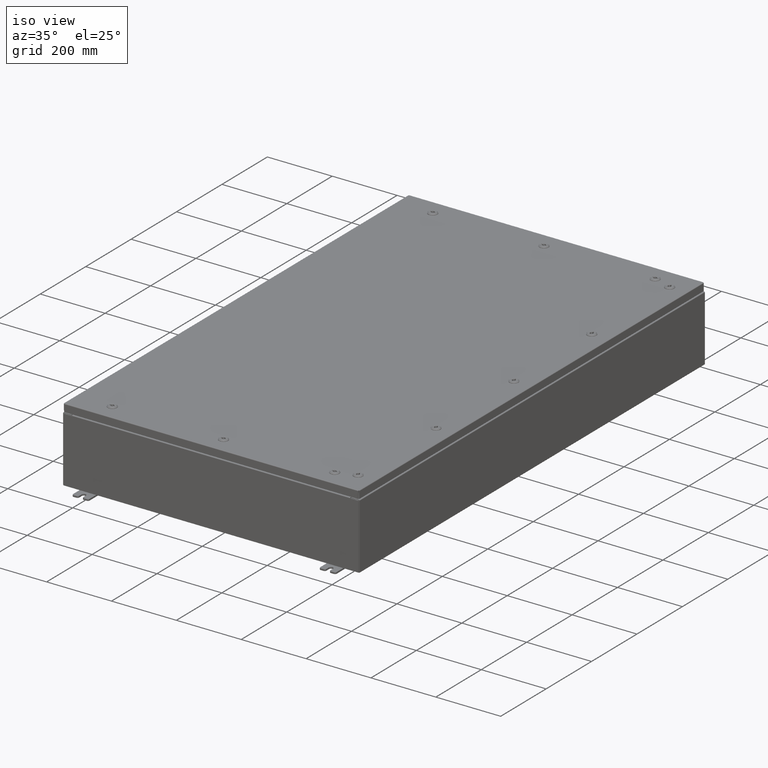
[diagram: clean part render]
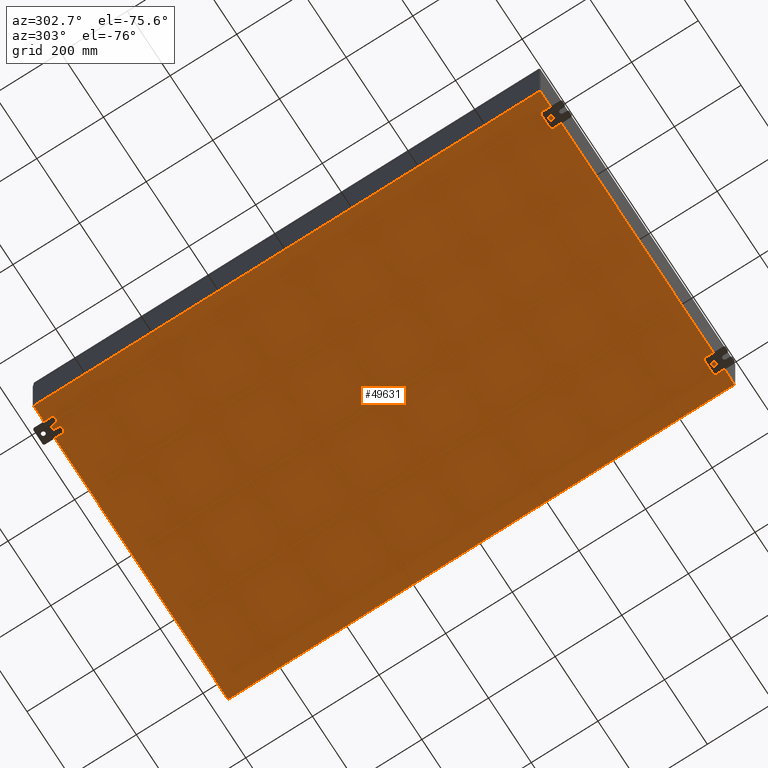
[diagram: tour spotlight — one face highlighted and labeled with its STEP entity id]
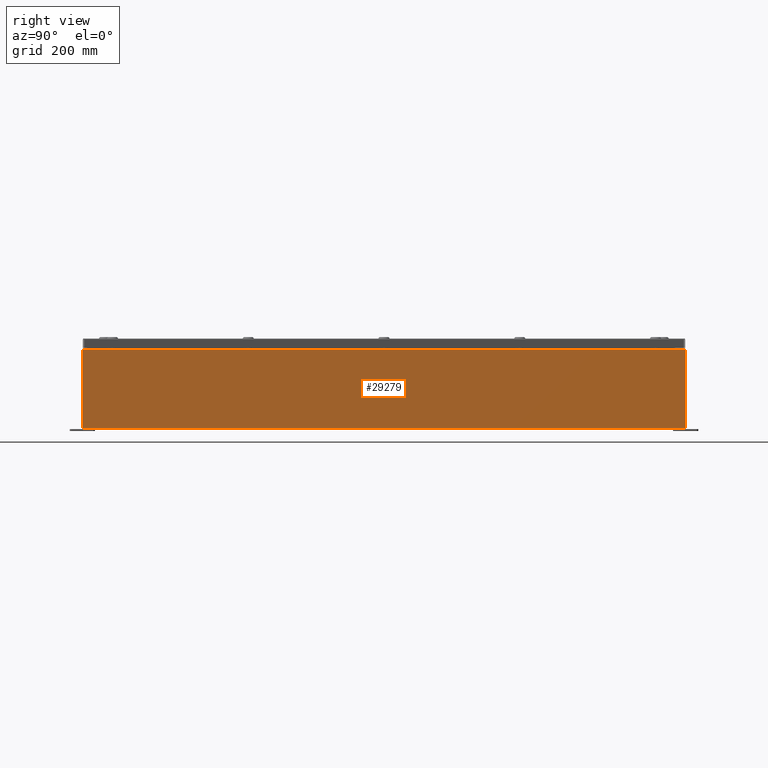
[diagram: tour spotlight — one face highlighted and labeled with its STEP entity id]
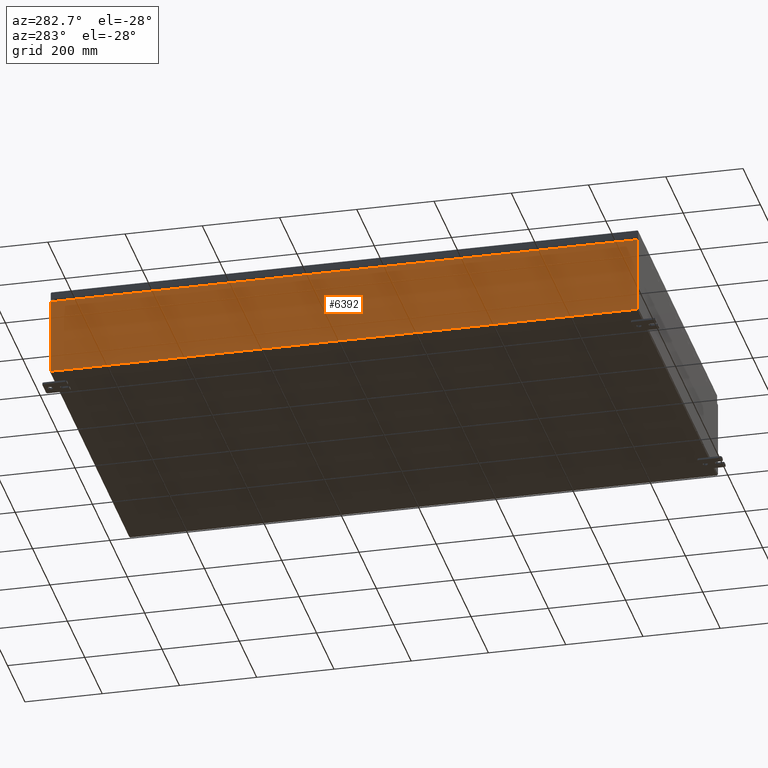
[diagram: tour spotlight — one face highlighted and labeled with its STEP entity id]
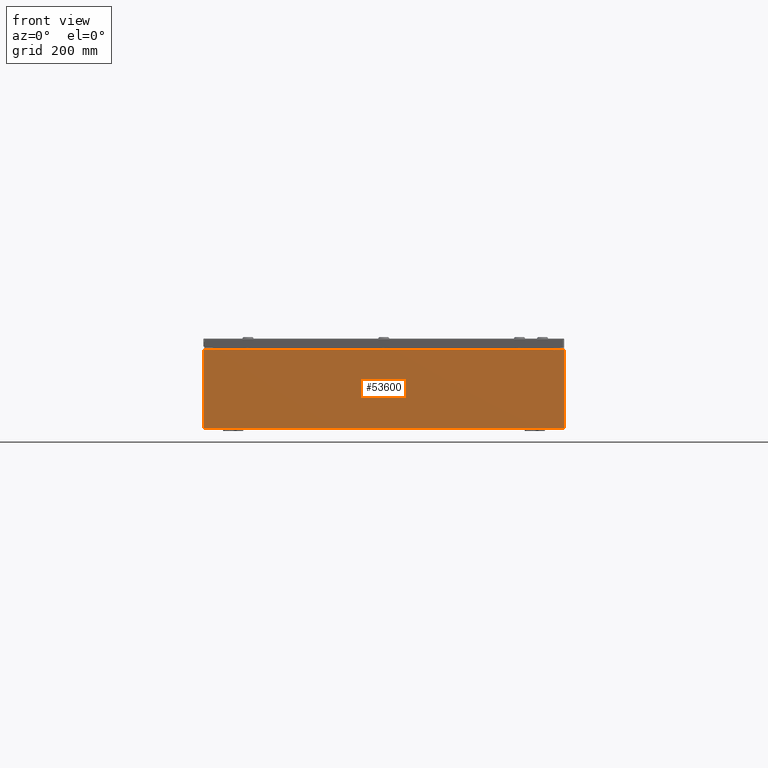
[diagram: tour spotlight — one face highlighted and labeled with its STEP entity id]
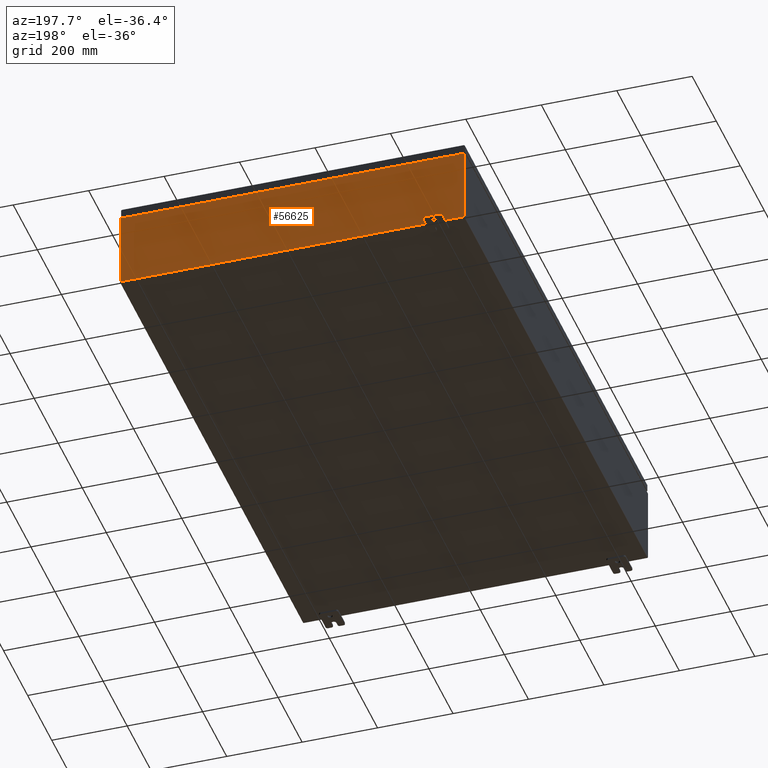
[diagram: tour spotlight — one face highlighted and labeled with its STEP entity id]
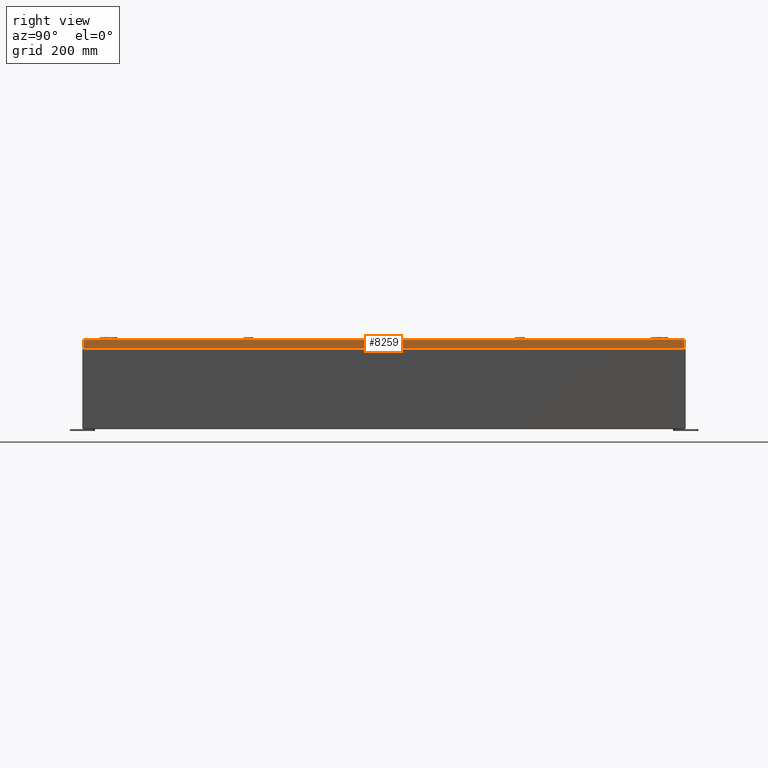
[diagram: tour spotlight — one face highlighted and labeled with its STEP entity id]
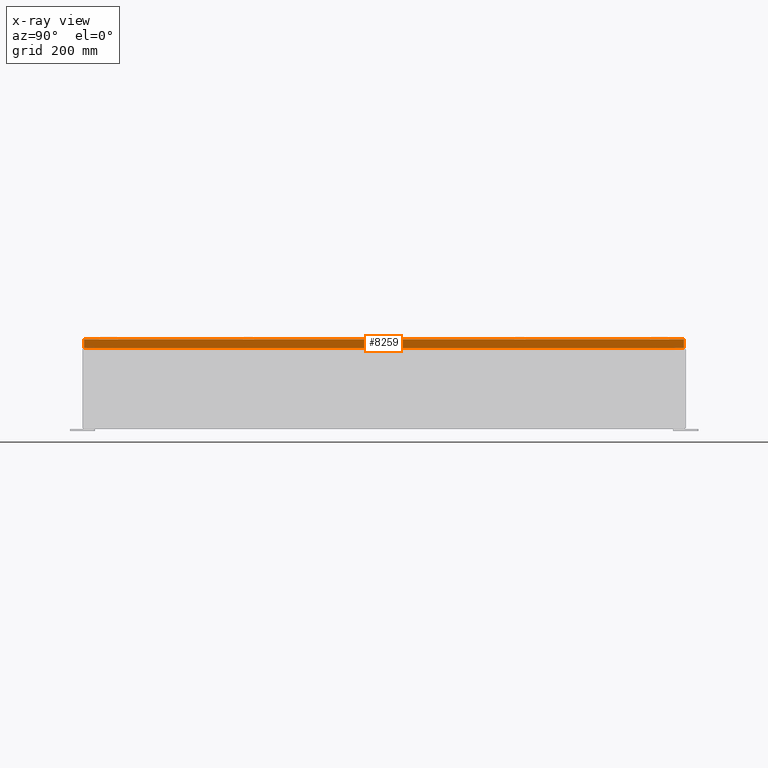
[diagram: x-ray of the same camera — body ghosted, this tour face saturated]
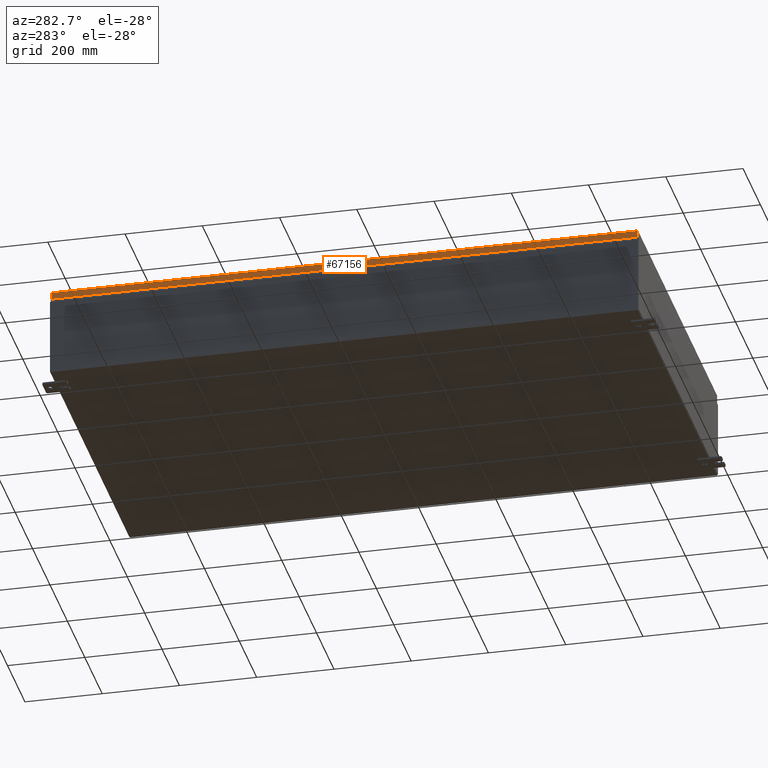
[diagram: tour spotlight — one face highlighted and labeled with its STEP entity id]
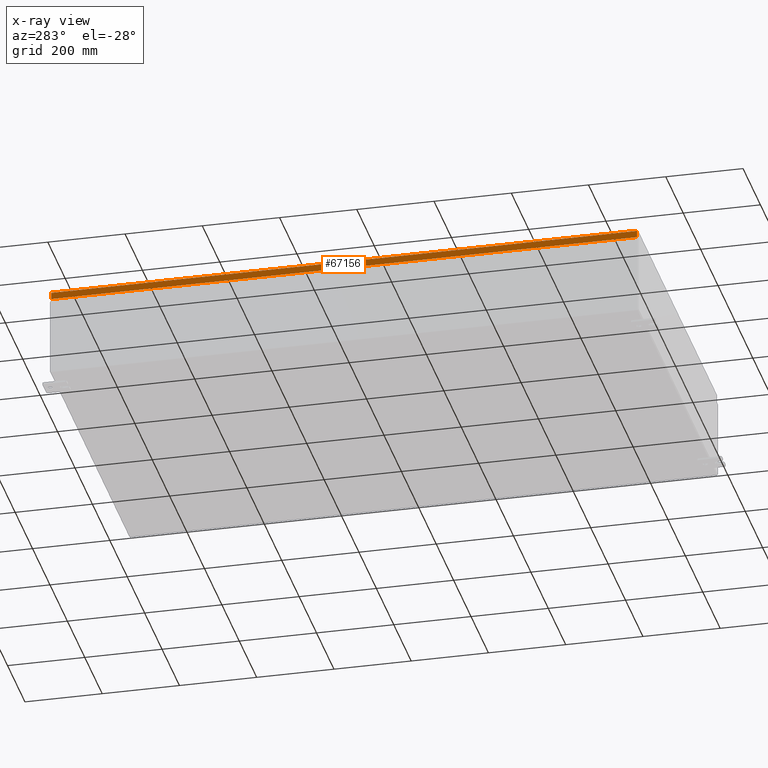
[diagram: x-ray of the same camera — body ghosted, this tour face saturated]
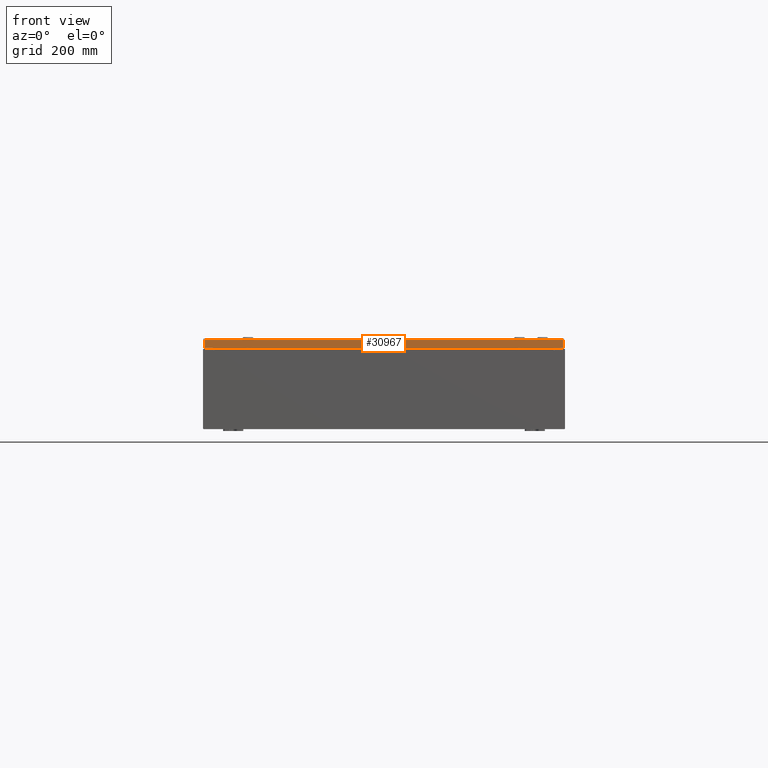
[diagram: tour spotlight — one face highlighted and labeled with its STEP entity id]
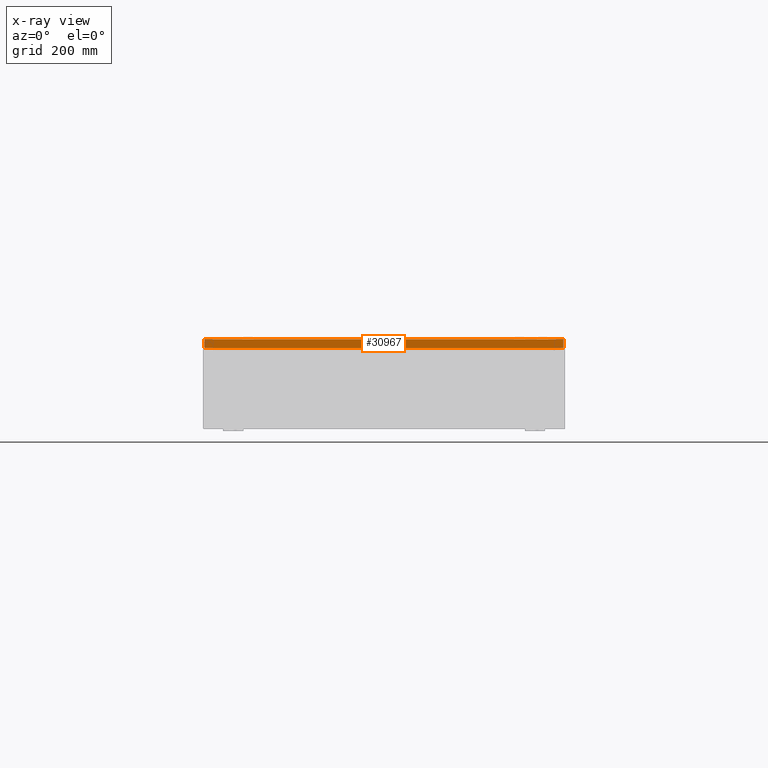
[diagram: x-ray of the same camera — body ghosted, this tour face saturated]
A machine part: a face-by-face anatomy tour. The part has 9942 B-rep faces; the first image is the clean iso view, then the 8 largest visible faces are spotlighted one at a time (largest first), each with its STEP entity span.

Face 1 — auxiliary view, entity #49631. In plain terms, the highlighted planar face has unit normal (0, 0, -1).
Definition (entity closure, byte-faithful):
#751 = ORIENTED_EDGE ( 'NONE', *, *, #67697, .T. ) ;
#3636 = ORIENTED_EDGE ( 'NONE', *, *, #32976, .T. ) ;
#6249 = EDGE_LOOP ( 'NONE', ( #13734, #751, #45249, #3636 ) ) ;
#6279 = DIRECTION ( 'NONE',  ( 0.0000000000000000000, 0.0000000000000000000, -1.000000000000000000 ) ) ;
#7538 = VECTOR ( 'NONE', #19351, 39.37007874015748100 ) ;
#10558 = FACE_OUTER_BOUND ( 'NONE', #6249, .T. ) ;
#11871 = DIRECTION ( 'NONE',  ( 1.000000000000000000, 0.0000000000000000000, 0.0000000000000000000 ) ) ;
#13734 = ORIENTED_EDGE ( 'NONE', *, *, #68928, .F. ) ;
#19351 = DIRECTION ( 'NONE',  ( -1.000000000000000000, -0.0000000000000000000, -0.0000000000000000000 ) ) ;
#20974 = CARTESIAN_POINT ( 'NONE',  ( -17.91230000000000200, -29.92530000000001100, -0.07469999999999994700 ) ) ;
#21862 = AXIS2_PLACEMENT_3D ( 'NONE', #64716, #6279, #43666 ) ;
#23699 = VECTOR ( 'NONE', #63141, 39.37007874015748100 ) ;
#24604 = CARTESIAN_POINT ( 'NONE',  ( -17.91230000000000200, -29.92530000000002100, -0.07469999999999994700 ) ) ;
#26158 = VERTEX_POINT ( 'NONE', #20974 ) ;
#30005 = VERTEX_POINT ( 'NONE', #68145 ) ;
#30721 = VECTOR ( 'NONE', #11871, 39.37007874015748100 ) ;
#31652 = LINE ( 'NONE', #24604, #44257 ) ;
#32976 = EDGE_CURVE ( 'NONE', #52696, #48132, #36232, .T. ) ;
#35269 = CARTESIAN_POINT ( 'NONE',  ( -18.00000000000000400, 29.92529999999998900, -0.07470000000000000300 ) ) ;
#35932 = LINE ( 'NONE', #35269, #7538 ) ;
#36232 = LINE ( 'NONE', #52364, #23699 ) ;
#37453 = CARTESIAN_POINT ( 'NONE',  ( 17.91229999999999800, -29.92530000000001100, -0.07470000000000000300 ) ) ;
#40753 = DIRECTION ( 'NONE',  ( -0.0000000000000000000, 1.000000000000000000, -0.0000000000000000000 ) ) ;
#43207 = CARTESIAN_POINT ( 'NONE',  ( -18.00000000000000400, -29.92530000000001100, -0.07470000000000000300 ) ) ;
#43666 = DIRECTION ( 'NONE',  ( -1.000000000000000000, 0.0000000000000000000, -0.0000000000000000000 ) ) ;
#44257 = VECTOR ( 'NONE', #40753, 39.37007874015748100 ) ;
#44994 = LINE ( 'NONE', #43207, #30721 ) ;
#45249 = ORIENTED_EDGE ( 'NONE', *, *, #59306, .F. ) ;
#48132 = VERTEX_POINT ( 'NONE', #37453 ) ;
#49631 = ADVANCED_FACE ( 'NONE', ( #10558 ), #59571, .T. ) ;
#52364 = CARTESIAN_POINT ( 'NONE',  ( 17.91229999999999800, 29.92529999999999300, -0.07469999999999994700 ) ) ;
#52696 = VERTEX_POINT ( 'NONE', #68391 ) ;
#59306 = EDGE_CURVE ( 'NONE', #52696, #30005, #35932, .T. ) ;
#59571 = PLANE ( 'NONE',  #21862 ) ;
#63141 = DIRECTION ( 'NONE',  ( -0.0000000000000000000, -1.000000000000000000, -0.0000000000000000000 ) ) ;
#64716 = CARTESIAN_POINT ( 'NONE',  ( 0.0000000000000000000, 0.0000000000000000000, -0.07470000000000000300 ) ) ;
#67697 = EDGE_CURVE ( 'NONE', #26158, #30005, #31652, .T. ) ;
#68145 = CARTESIAN_POINT ( 'NONE',  ( -17.91230000000000200, 29.92529999999998600, -0.07470000000000000300 ) ) ;
#68391 = CARTESIAN_POINT ( 'NONE',  ( 17.91229999999999800, 29.92529999999999300, -0.07469999999999994700 ) ) ;
#68928 = EDGE_CURVE ( 'NONE', #26158, #48132, #44994, .T. ) ;

Face 2 — right view, entity #29279. In plain terms, the highlighted planar face has unit normal (-1, 0, 0).
Definition (entity closure, byte-faithful):
#322 = CARTESIAN_POINT ( 'NONE',  ( 17.99999999999999600, -29.92530000000001100, 0.01299999999999984700 ) ) ;
#3221 = EDGE_CURVE ( 'NONE', #27669, #62026, #36061, .T. ) ;
#3293 = CARTESIAN_POINT ( 'NONE',  ( 17.99999999999999600, 29.92529999999998900, -6.478858477053722900E-014 ) ) ;
#7445 = ORIENTED_EDGE ( 'NONE', *, *, #64838, .F. ) ;
#8714 = PLANE ( 'NONE',  #36461 ) ;
#9924 = DIRECTION ( 'NONE',  ( -3.584876173029202900E-015, 0.0000000000000000000, -1.000000000000000000 ) ) ;
#10937 = EDGE_CURVE ( 'NONE', #35582, #19134, #53180, .T. ) ;
#13394 = VECTOR ( 'NONE', #38820, 39.37007874015748100 ) ;
#19134 = VERTEX_POINT ( 'NONE', #30064 ) ;
#19715 = EDGE_LOOP ( 'NONE', ( #68659, #24598, #7445, #55058 ) ) ;
#20137 = VECTOR ( 'NONE', #67338, 39.37007874015748100 ) ;
#24598 = ORIENTED_EDGE ( 'NONE', *, *, #10937, .T. ) ;
#25031 = DIRECTION ( 'NONE',  ( -1.000000000000000000, 0.0000000000000000000, 3.584876173029202900E-015 ) ) ;
#27614 = LINE ( 'NONE', #54704, #13394 ) ;
#27669 = VERTEX_POINT ( 'NONE', #50066 ) ;
#27834 = CARTESIAN_POINT ( 'NONE',  ( 18.00000000000002500, -29.92530000000001100, 7.837599999999999200 ) ) ;
#29279 = ADVANCED_FACE ( 'NONE', ( #52388 ), #8714, .F. ) ;
#30064 = CARTESIAN_POINT ( 'NONE',  ( 17.99999999999999600, -29.92530000000001100, 0.01299999999999983600 ) ) ;
#35582 = VERTEX_POINT ( 'NONE', #27834 ) ;
#36061 = LINE ( 'NONE', #3293, #20137 ) ;
#36461 = AXIS2_PLACEMENT_3D ( 'NONE', #57091, #25031, #62469 ) ;
#38820 = DIRECTION ( 'NONE',  ( -0.0000000000000000000, -1.000000000000000000, -0.0000000000000000000 ) ) ;
#49450 = VECTOR ( 'NONE', #59192, 39.37007874015748100 ) ;
#50066 = CARTESIAN_POINT ( 'NONE',  ( 17.99999999999999600, 29.92529999999999300, 0.01299999999999984700 ) ) ;
#52388 = FACE_OUTER_BOUND ( 'NONE', #19715, .T. ) ;
#53180 = LINE ( 'NONE', #57860, #67429 ) ;
#54704 = CARTESIAN_POINT ( 'NONE',  ( 18.00000000000002500, 29.92529999999999300, 7.837599999999999200 ) ) ;
#55058 = ORIENTED_EDGE ( 'NONE', *, *, #3221, .T. ) ;
#57091 = CARTESIAN_POINT ( 'NONE',  ( 17.99999999999999600, 0.0000000000000000000, -6.478858477053722900E-014 ) ) ;
#57780 = CARTESIAN_POINT ( 'NONE',  ( 18.00000000000002500, 29.92529999999999300, 7.837599999999999200 ) ) ;
#57860 = CARTESIAN_POINT ( 'NONE',  ( 17.99999999999999600, -29.92530000000001100, -6.478858477053722900E-014 ) ) ;
#58601 = EDGE_CURVE ( 'NONE', #62026, #35582, #27614, .T. ) ;
#59192 = DIRECTION ( 'NONE',  ( -0.0000000000000000000, -1.000000000000000000, -0.0000000000000000000 ) ) ;
#62026 = VERTEX_POINT ( 'NONE', #57780 ) ;
#62469 = DIRECTION ( 'NONE',  ( 3.584876173029202900E-015, 0.0000000000000000000, 1.000000000000000000 ) ) ;
#64838 = EDGE_CURVE ( 'NONE', #27669, #19134, #65386, .T. ) ;
#65386 = LINE ( 'NONE', #322, #49450 ) ;
#67338 = DIRECTION ( 'NONE',  ( 3.584876173029202900E-015, 0.0000000000000000000, 1.000000000000000000 ) ) ;
#67429 = VECTOR ( 'NONE', #9924, 39.37007874015748100 ) ;
#68659 = ORIENTED_EDGE ( 'NONE', *, *, #58601, .T. ) ;

Face 3 — auxiliary view, entity #6392. In plain terms, the highlighted planar face has unit normal (1, 0, 0).
Definition (entity closure, byte-faithful):
#355 = EDGE_CURVE ( 'NONE', #26771, #723, #64729, .T. ) ;
#723 = VERTEX_POINT ( 'NONE', #26329 ) ;
#1898 = DIRECTION ( 'NONE',  ( -0.0000000000000000000, 1.000000000000000000, -0.0000000000000000000 ) ) ;
#2956 = DIRECTION ( 'NONE',  ( 1.000000000000000000, 0.0000000000000000000, 3.584876173029202900E-015 ) ) ;
#6392 = ADVANCED_FACE ( 'NONE', ( #10834 ), #29566, .F. ) ;
#7849 = VECTOR ( 'NONE', #67313, 39.37007874015748100 ) ;
#10834 = FACE_OUTER_BOUND ( 'NONE', #56059, .T. ) ;
#14512 = VERTEX_POINT ( 'NONE', #56177 ) ;
#16448 = LINE ( 'NONE', #17278, #68350 ) ;
#16509 = CARTESIAN_POINT ( 'NONE',  ( -18.00000000000003200, 29.92529999999998900, 7.837599999999999200 ) ) ;
#17278 = CARTESIAN_POINT ( 'NONE',  ( -18.00000000000002800, -29.92530000000001800, 7.837599999999999200 ) ) ;
#21368 = EDGE_CURVE ( 'NONE', #45093, #14512, #22009, .T. ) ;
#22009 = LINE ( 'NONE', #54378, #50474 ) ;
#23116 = CARTESIAN_POINT ( 'NONE',  ( -18.00000000000000400, 29.92529999999998900, 0.01299999999999984700 ) ) ;
#25181 = EDGE_CURVE ( 'NONE', #45093, #723, #66836, .T. ) ;
#26329 = CARTESIAN_POINT ( 'NONE',  ( -18.00000000000000400, 29.92529999999998600, 0.01299999999999983600 ) ) ;
#26771 = VERTEX_POINT ( 'NONE', #16509 ) ;
#27170 = ORIENTED_EDGE ( 'NONE', *, *, #25181, .F. ) ;
#29566 = PLANE ( 'NONE',  #43739 ) ;
#29876 = CARTESIAN_POINT ( 'NONE',  ( -18.00000000000000400, 29.92529999999998900, -6.478858477053724100E-014 ) ) ;
#31624 = CARTESIAN_POINT ( 'NONE',  ( -18.00000000000000400, -29.92530000000001100, 0.01299999999999984700 ) ) ;
#34949 = CARTESIAN_POINT ( 'NONE',  ( -18.00000000000000400, 0.0000000000000000000, -6.478858477053724100E-014 ) ) ;
#38261 = DIRECTION ( 'NONE',  ( -3.584876173029202900E-015, 0.0000000000000000000, 1.000000000000000000 ) ) ;
#40344 = DIRECTION ( 'NONE',  ( 3.584876173029202900E-015, 0.0000000000000000000, -1.000000000000000000 ) ) ;
#43739 = AXIS2_PLACEMENT_3D ( 'NONE', #34949, #2956, #40344 ) ;
#45093 = VERTEX_POINT ( 'NONE', #31624 ) ;
#49097 = ORIENTED_EDGE ( 'NONE', *, *, #21368, .T. ) ;
#50474 = VECTOR ( 'NONE', #38261, 39.37007874015748100 ) ;
#52570 = VECTOR ( 'NONE', #1898, 39.37007874015748100 ) ;
#52755 = ORIENTED_EDGE ( 'NONE', *, *, #355, .T. ) ;
#54378 = CARTESIAN_POINT ( 'NONE',  ( -18.00000000000000400, -29.92530000000001100, -6.478858477053724100E-014 ) ) ;
#56059 = EDGE_LOOP ( 'NONE', ( #66742, #52755, #27170, #49097 ) ) ;
#56177 = CARTESIAN_POINT ( 'NONE',  ( -18.00000000000002800, -29.92530000000001100, 7.837599999999999200 ) ) ;
#60114 = DIRECTION ( 'NONE',  ( 0.0000000000000000000, 1.000000000000000000, 0.0000000000000000000 ) ) ;
#62303 = EDGE_CURVE ( 'NONE', #14512, #26771, #16448, .T. ) ;
#64729 = LINE ( 'NONE', #29876, #7849 ) ;
#66742 = ORIENTED_EDGE ( 'NONE', *, *, #62303, .T. ) ;
#66836 = LINE ( 'NONE', #23116, #52570 ) ;
#67313 = DIRECTION ( 'NONE',  ( 3.584876173029202900E-015, 0.0000000000000000000, -1.000000000000000000 ) ) ;
#68350 = VECTOR ( 'NONE', #60114, 39.37007874015748100 ) ;

Face 4 — front view, entity #53600. In plain terms, the highlighted planar face has unit normal (-0, 1, -0).
Definition (entity closure, byte-faithful):
#25 = DIRECTION ( 'NONE',  ( -0.0000000000000000000, -0.0000000000000000000, 1.000000000000000000 ) ) ;
#1098 = ORIENTED_EDGE ( 'NONE', *, *, #59541, .F. ) ;
#1409 = DIRECTION ( 'NONE',  ( 0.0000000000000000000, 0.0000000000000000000, -1.000000000000000000 ) ) ;
#1750 = CARTESIAN_POINT ( 'NONE',  ( 16.88720000000000700, 0.0000000000000000000, 0.0000000000000000000 ) ) ;
#3314 = EDGE_CURVE ( 'NONE', #24496, #35326, #32704, .T. ) ;
#3979 = VECTOR ( 'NONE', #59647, 39.37007874015748100 ) ;
#4288 = VECTOR ( 'NONE', #41137, 39.37007874015748100 ) ;
#4752 = DIRECTION ( 'NONE',  ( -1.000000000000000000, -0.0000000000000000000, -0.0000000000000000000 ) ) ;
#5164 = CARTESIAN_POINT ( 'NONE',  ( -16.92454999999999300, 0.0000000000000000000, 3.874950000000000100 ) ) ;
#5209 = AXIS2_PLACEMENT_3D ( 'NONE', #31706, #69127, #37107 ) ;
#5219 = ORIENTED_EDGE ( 'NONE', *, *, #54180, .F. ) ;
#5706 = LINE ( 'NONE', #47725, #32420 ) ;
#5826 = ORIENTED_EDGE ( 'NONE', *, *, #48104, .T. ) ;
#6619 = CARTESIAN_POINT ( 'NONE',  ( 16.92455000000000400, 0.0000000000000000000, 3.925300000000000500 ) ) ;
#8026 = ORIENTED_EDGE ( 'NONE', *, *, #33206, .F. ) ;
#8310 = EDGE_CURVE ( 'NONE', #48891, #18357, #48331, .T. ) ;
#8745 = EDGE_CURVE ( 'NONE', #25000, #35326, #34942, .T. ) ;
#9362 = VERTEX_POINT ( 'NONE', #58226 ) ;
#10988 = ORIENTED_EDGE ( 'NONE', *, *, #59002, .F. ) ;
#15237 = CARTESIAN_POINT ( 'NONE',  ( 17.92530000000000400, 0.0000000000000000000, 3.925300000000000500 ) ) ;
#15902 = VERTEX_POINT ( 'NONE', #66092 ) ;
#16851 = VERTEX_POINT ( 'NONE', #62352 ) ;
#16967 = CARTESIAN_POINT ( 'NONE',  ( 16.92454999999967000, -0.0000000000000000000, -1.469244821010349400E-012 ) ) ;
#17881 = LINE ( 'NONE', #16967, #32100 ) ;
#18168 = LINE ( 'NONE', #48850, #3979 ) ;
#18357 = VERTEX_POINT ( 'NONE', #61835 ) ;
#18817 = CARTESIAN_POINT ( 'NONE',  ( -16.88719999999999300, 3.756290991288361700E-016, 3.912300000000000100 ) ) ;
#19018 = VECTOR ( 'NONE', #65794, 39.37007874015748100 ) ;
#19376 = ORIENTED_EDGE ( 'NONE', *, *, #22751, .T. ) ;
#20329 = LINE ( 'NONE', #64045, #61376 ) ;
#20689 = LINE ( 'NONE', #41809, #47453 ) ;
#21051 = CARTESIAN_POINT ( 'NONE',  ( 16.88720000000000700, 0.0000000000000000000, 3.912300000000000100 ) ) ;
#21752 = CARTESIAN_POINT ( 'NONE',  ( -16.92454999999999300, -0.0000000000000000000, 0.0000000000000000000 ) ) ;
#21895 = ORIENTED_EDGE ( 'NONE', *, *, #62194, .T. ) ;
#22482 = VERTEX_POINT ( 'NONE', #28381 ) ;
#22751 = EDGE_CURVE ( 'NONE', #15902, #9362, #20329, .T. ) ;
#24447 = PLANE ( 'NONE',  #25127 ) ;
#24496 = VERTEX_POINT ( 'NONE', #18817 ) ;
#25000 = VERTEX_POINT ( 'NONE', #59004 ) ;
#25127 = AXIS2_PLACEMENT_3D ( 'NONE', #45738, #57824, #25748 ) ;
#25397 = CARTESIAN_POINT ( 'NONE',  ( 16.90587500000000500, 0.0000000000000000000, 3.874950000000000100 ) ) ;
#25748 = DIRECTION ( 'NONE',  ( 0.0000000000000000000, -0.0000000000000000000, -1.000000000000000000 ) ) ;
#27495 = ORIENTED_EDGE ( 'NONE', *, *, #8745, .F. ) ;
#28010 = EDGE_LOOP ( 'NONE', ( #67613, #1098, #8026, #56610, #27495, #10988, #5219, #21895, #64181, #5826, #19376, #37049 ) ) ;
#28224 = CARTESIAN_POINT ( 'NONE',  ( 17.92530000000000400, 0.0000000000000000000, 3.925300000000000500 ) ) ;
#28381 = CARTESIAN_POINT ( 'NONE',  ( 16.92455000000000400, 0.0000000000000000000, 3.874950000000000100 ) ) ;
#30083 = CIRCLE ( 'NONE', #61633, 0.01867499999999949400 ) ;
#30110 = VERTEX_POINT ( 'NONE', #15237 ) ;
#30773 = DIRECTION ( 'NONE',  ( 0.0000000000000000000, 0.0000000000000000000, -1.000000000000000000 ) ) ;
#31706 = CARTESIAN_POINT ( 'NONE',  ( -16.90587499999999500, 0.0000000000000000000, 3.874950000000000100 ) ) ;
#32100 = VECTOR ( 'NONE', #54162, 39.37007874015748100 ) ;
#32420 = VECTOR ( 'NONE', #4752, 39.37007874015748100 ) ;
#32704 = LINE ( 'NONE', #46488, #4288 ) ;
#33206 = EDGE_CURVE ( 'NONE', #24496, #16851, #54637, .T. ) ;
#34149 = VECTOR ( 'NONE', #64344, 39.37007874015748100 ) ;
#34942 = LINE ( 'NONE', #1750, #19018 ) ;
#35326 = VERTEX_POINT ( 'NONE', #21051 ) ;
#37049 = ORIENTED_EDGE ( 'NONE', *, *, #61586, .T. ) ;
#37107 = DIRECTION ( 'NONE',  ( 0.0000000000000000000, 0.0000000000000000000, -1.000000000000000000 ) ) ;
#39764 = VERTEX_POINT ( 'NONE', #42515 ) ;
#41137 = DIRECTION ( 'NONE',  ( 1.000000000000000000, 0.0000000000000000000, 0.0000000000000000000 ) ) ;
#41809 = CARTESIAN_POINT ( 'NONE',  ( -17.92529999999999600, 0.0000000000000000000, 3.925300000000000500 ) ) ;
#42515 = CARTESIAN_POINT ( 'NONE',  ( 17.92530000000000400, 0.0000000000000000000, -3.925299999999999100 ) ) ;
#45738 = CARTESIAN_POINT ( 'NONE',  ( 0.0000000000000000000, 0.0000000000000000000, 0.0000000000000000000 ) ) ;
#46488 = CARTESIAN_POINT ( 'NONE',  ( -16.88719999999999600, 3.756290991288361700E-016, 3.912300000000000100 ) ) ;
#47189 = FACE_OUTER_BOUND ( 'NONE', #28010, .T. ) ;
#47453 = VECTOR ( 'NONE', #52537, 39.37007874015748100 ) ;
#47725 = CARTESIAN_POINT ( 'NONE',  ( -17.92529999999999600, 0.0000000000000000000, -3.925299999999999100 ) ) ;
#48104 = EDGE_CURVE ( 'NONE', #39764, #15902, #5706, .T. ) ;
#48326 = VERTEX_POINT ( 'NONE', #6619 ) ;
#48331 = LINE ( 'NONE', #21752, #34149 ) ;
#48592 = CARTESIAN_POINT ( 'NONE',  ( -16.88719999999999300, -0.0000000000000000000, 0.0000000000000000000 ) ) ;
#48850 = CARTESIAN_POINT ( 'NONE',  ( -17.92529999999999600, 0.0000000000000000000, 3.925300000000000500 ) ) ;
#48891 = VERTEX_POINT ( 'NONE', #5164 ) ;
#52537 = DIRECTION ( 'NONE',  ( 1.000000000000000000, 0.0000000000000000000, 0.0000000000000000000 ) ) ;
#52936 = VECTOR ( 'NONE', #53993, 39.37007874015748100 ) ;
#53600 = ADVANCED_FACE ( 'NONE', ( #47189 ), #24447, .F. ) ;
#53993 = DIRECTION ( 'NONE',  ( 0.0000000000000000000, 0.0000000000000000000, -1.000000000000000000 ) ) ;
#54162 = DIRECTION ( 'NONE',  ( -8.681145560800009800E-014, 0.0000000000000000000, -1.000000000000000000 ) ) ;
#54180 = EDGE_CURVE ( 'NONE', #48326, #22482, #17881, .T. ) ;
#54637 = LINE ( 'NONE', #48592, #52936 ) ;
#54883 = LINE ( 'NONE', #28224, #56563 ) ;
#56563 = VECTOR ( 'NONE', #1409, 39.37007874015748100 ) ;
#56610 = ORIENTED_EDGE ( 'NONE', *, *, #3314, .T. ) ;
#57824 = DIRECTION ( 'NONE',  ( 0.0000000000000000000, -1.000000000000000000, 0.0000000000000000000 ) ) ;
#58226 = CARTESIAN_POINT ( 'NONE',  ( -17.92529999999999600, 0.0000000000000000000, 3.925300000000000500 ) ) ;
#59002 = EDGE_CURVE ( 'NONE', #22482, #25000, #30083, .T. ) ;
#59004 = CARTESIAN_POINT ( 'NONE',  ( 16.88720000000000700, 0.0000000000000000000, 3.874950000000000100 ) ) ;
#59541 = EDGE_CURVE ( 'NONE', #16851, #48891, #68550, .T. ) ;
#59647 = DIRECTION ( 'NONE',  ( 1.000000000000000000, 0.0000000000000000000, 0.0000000000000000000 ) ) ;
#61376 = VECTOR ( 'NONE', #25, 39.37007874015748100 ) ;
#61586 = EDGE_CURVE ( 'NONE', #9362, #18357, #20689, .T. ) ;
#61633 = AXIS2_PLACEMENT_3D ( 'NONE', #25397, #62840, #30773 ) ;
#61835 = CARTESIAN_POINT ( 'NONE',  ( -16.92454999999999300, 0.0000000000000000000, 3.925300000000000500 ) ) ;
#62194 = EDGE_CURVE ( 'NONE', #48326, #30110, #18168, .T. ) ;
#62352 = CARTESIAN_POINT ( 'NONE',  ( -16.88719999999999300, -0.0000000000000000000, 3.874950000000000100 ) ) ;
#62840 = DIRECTION ( 'NONE',  ( -0.0000000000000000000, 1.000000000000000000, -0.0000000000000000000 ) ) ;
#63697 = EDGE_CURVE ( 'NONE', #30110, #39764, #54883, .T. ) ;
#64045 = CARTESIAN_POINT ( 'NONE',  ( -17.92529999999999600, 0.0000000000000000000, 3.925300000000000500 ) ) ;
#64181 = ORIENTED_EDGE ( 'NONE', *, *, #63697, .T. ) ;
#64344 = DIRECTION ( 'NONE',  ( 0.0000000000000000000, 0.0000000000000000000, 1.000000000000000000 ) ) ;
#65794 = DIRECTION ( 'NONE',  ( 0.0000000000000000000, 0.0000000000000000000, 1.000000000000000000 ) ) ;
#66092 = CARTESIAN_POINT ( 'NONE',  ( -17.92529999999999600, 0.0000000000000000000, -3.925299999999999100 ) ) ;
#67613 = ORIENTED_EDGE ( 'NONE', *, *, #8310, .F. ) ;
#68550 = CIRCLE ( 'NONE', #5209, 0.01867499999999949400 ) ;
#69127 = DIRECTION ( 'NONE',  ( -0.0000000000000000000, 1.000000000000000000, -0.0000000000000000000 ) ) ;

Face 5 — auxiliary view, entity #56625. In plain terms, the highlighted planar face has unit normal (0, -1, 0).
Definition (entity closure, byte-faithful):
#358 = EDGE_CURVE ( 'NONE', #25995, #11756, #9501, .T. ) ;
#2054 = CARTESIAN_POINT ( 'NONE',  ( -17.92529999999999600, 0.0000000000000000000, 3.925300000000000500 ) ) ;
#2280 = CARTESIAN_POINT ( 'NONE',  ( -16.92454999999999300, 0.0000000000000000000, 3.874950000000000100 ) ) ;
#2356 = DIRECTION ( 'NONE',  ( -0.0000000000000000000, -0.0000000000000000000, 1.000000000000000000 ) ) ;
#2710 = FACE_OUTER_BOUND ( 'NONE', #55367, .T. ) ;
#2759 = VERTEX_POINT ( 'NONE', #41648 ) ;
#2833 = CARTESIAN_POINT ( 'NONE',  ( -16.90587499999999500, 0.0000000000000000000, 3.874950000000000100 ) ) ;
#3462 = ORIENTED_EDGE ( 'NONE', *, *, #66468, .T. ) ;
#3653 = DIRECTION ( 'NONE',  ( -1.000000000000000000, -0.0000000000000000000, -0.0000000000000000000 ) ) ;
#4499 = CARTESIAN_POINT ( 'NONE',  ( -16.92454999999999300, -0.0000000000000000000, 0.0000000000000000000 ) ) ;
#4542 = EDGE_CURVE ( 'NONE', #49709, #25995, #64531, .T. ) ;
#6033 = CARTESIAN_POINT ( 'NONE',  ( -16.88719999999999300, -0.0000000000000000000, 0.0000000000000000000 ) ) ;
#6179 = VECTOR ( 'NONE', #13759, 39.37007874015748100 ) ;
#6749 = ORIENTED_EDGE ( 'NONE', *, *, #19432, .F. ) ;
#7244 = PLANE ( 'NONE',  #58845 ) ;
#7249 = ORIENTED_EDGE ( 'NONE', *, *, #42000, .F. ) ;
#8055 = CARTESIAN_POINT ( 'NONE',  ( -16.88719999999999600, 3.756290991288361700E-016, 3.912300000000000100 ) ) ;
#8089 = VERTEX_POINT ( 'NONE', #9871 ) ;
#8186 = DIRECTION ( 'NONE',  ( 0.0000000000000000000, 0.0000000000000000000, -1.000000000000000000 ) ) ;
#8279 = DIRECTION ( 'NONE',  ( 1.000000000000000000, 0.0000000000000000000, 0.0000000000000000000 ) ) ;
#8758 = LINE ( 'NONE', #23561, #19587 ) ;
#8843 = DIRECTION ( 'NONE',  ( -0.0000000000000000000, 1.000000000000000000, -0.0000000000000000000 ) ) ;
#8884 = VECTOR ( 'NONE', #39427, 39.37007874015748100 ) ;
#9501 = LINE ( 'NONE', #19129, #6179 ) ;
#9871 = CARTESIAN_POINT ( 'NONE',  ( -16.88719999999999300, 3.756290991288361700E-016, 3.912300000000000100 ) ) ;
#11756 = VERTEX_POINT ( 'NONE', #20936 ) ;
#12033 = VECTOR ( 'NONE', #38694, 39.37007874015748100 ) ;
#13759 = DIRECTION ( 'NONE',  ( 0.0000000000000000000, 0.0000000000000000000, 1.000000000000000000 ) ) ;
#15196 = EDGE_CURVE ( 'NONE', #55771, #59904, #63477, .T. ) ;
#17437 = VECTOR ( 'NONE', #2356, 39.37007874015748100 ) ;
#17802 = ORIENTED_EDGE ( 'NONE', *, *, #41484, .F. ) ;
#17993 = VECTOR ( 'NONE', #38041, 39.37007874015748100 ) ;
#18189 = DIRECTION ( 'NONE',  ( 0.0000000000000000000, -1.000000000000000000, 0.0000000000000000000 ) ) ;
#19129 = CARTESIAN_POINT ( 'NONE',  ( 16.88720000000000700, 0.0000000000000000000, 0.0000000000000000000 ) ) ;
#19432 = EDGE_CURVE ( 'NONE', #8089, #2759, #39756, .T. ) ;
#19520 = LINE ( 'NONE', #41785, #60576 ) ;
#19587 = VECTOR ( 'NONE', #55614, 39.37007874015748100 ) ;
#20223 = VERTEX_POINT ( 'NONE', #29011 ) ;
#20936 = CARTESIAN_POINT ( 'NONE',  ( 16.88720000000000700, 0.0000000000000000000, 3.912300000000000100 ) ) ;
#21046 = LINE ( 'NONE', #4499, #33632 ) ;
#21052 = EDGE_CURVE ( 'NONE', #68269, #49709, #19520, .T. ) ;
#22906 = ORIENTED_EDGE ( 'NONE', *, *, #358, .F. ) ;
#23561 = CARTESIAN_POINT ( 'NONE',  ( 17.92530000000000400, 0.0000000000000000000, 3.925300000000000500 ) ) ;
#24527 = CARTESIAN_POINT ( 'NONE',  ( 16.88720000000000700, 0.0000000000000000000, 3.874950000000000100 ) ) ;
#24784 = VERTEX_POINT ( 'NONE', #68591 ) ;
#25995 = VERTEX_POINT ( 'NONE', #24527 ) ;
#27037 = ORIENTED_EDGE ( 'NONE', *, *, #15196, .T. ) ;
#28758 = CARTESIAN_POINT ( 'NONE',  ( 16.92455000000000400, 0.0000000000000000000, 3.925300000000000500 ) ) ;
#28952 = CARTESIAN_POINT ( 'NONE',  ( -17.92529999999999600, 0.0000000000000000000, 3.925300000000000500 ) ) ;
#29011 = CARTESIAN_POINT ( 'NONE',  ( 17.92530000000000400, 0.0000000000000000000, -3.925299999999999100 ) ) ;
#29703 = EDGE_CURVE ( 'NONE', #68269, #35712, #49859, .T. ) ;
#29812 = CARTESIAN_POINT ( 'NONE',  ( -17.92529999999999600, 0.0000000000000000000, -3.925299999999999100 ) ) ;
#31529 = EDGE_CURVE ( 'NONE', #35712, #20223, #8758, .T. ) ;
#33632 = VECTOR ( 'NONE', #36731, 39.37007874015748100 ) ;
#35184 = ORIENTED_EDGE ( 'NONE', *, *, #31529, .T. ) ;
#35652 = CARTESIAN_POINT ( 'NONE',  ( -17.92529999999999600, 0.0000000000000000000, -3.925299999999999100 ) ) ;
#35712 = VERTEX_POINT ( 'NONE', #49808 ) ;
#36731 = DIRECTION ( 'NONE',  ( 0.0000000000000000000, 0.0000000000000000000, 1.000000000000000000 ) ) ;
#38041 = DIRECTION ( 'NONE',  ( 0.0000000000000000000, 0.0000000000000000000, -1.000000000000000000 ) ) ;
#38694 = DIRECTION ( 'NONE',  ( 1.000000000000000000, 0.0000000000000000000, 0.0000000000000000000 ) ) ;
#38929 = CARTESIAN_POINT ( 'NONE',  ( -17.92529999999999600, 0.0000000000000000000, 3.925300000000000500 ) ) ;
#39243 = EDGE_CURVE ( 'NONE', #59904, #24784, #54695, .T. ) ;
#39427 = DIRECTION ( 'NONE',  ( 1.000000000000000000, 0.0000000000000000000, 0.0000000000000000000 ) ) ;
#39668 = CARTESIAN_POINT ( 'NONE',  ( -17.92529999999999600, 0.0000000000000000000, 3.925300000000000500 ) ) ;
#39756 = LINE ( 'NONE', #6033, #17993 ) ;
#40215 = DIRECTION ( 'NONE',  ( -0.0000000000000000000, 1.000000000000000000, -0.0000000000000000000 ) ) ;
#40863 = CARTESIAN_POINT ( 'NONE',  ( 16.90587500000000500, 0.0000000000000000000, 3.874950000000000100 ) ) ;
#41484 = EDGE_CURVE ( 'NONE', #59902, #24784, #21046, .T. ) ;
#41648 = CARTESIAN_POINT ( 'NONE',  ( -16.88719999999999300, -0.0000000000000000000, 3.874950000000000100 ) ) ;
#41785 = CARTESIAN_POINT ( 'NONE',  ( 16.92454999999967000, -0.0000000000000000000, -1.469244821010349400E-012 ) ) ;
#42000 = EDGE_CURVE ( 'NONE', #2759, #59902, #59533, .T. ) ;
#43497 = VECTOR ( 'NONE', #8279, 39.37007874015748100 ) ;
#45910 = AXIS2_PLACEMENT_3D ( 'NONE', #2833, #40215, #8186 ) ;
#46109 = EDGE_CURVE ( 'NONE', #20223, #55771, #64380, .T. ) ;
#46226 = DIRECTION ( 'NONE',  ( 0.0000000000000000000, 0.0000000000000000000, -1.000000000000000000 ) ) ;
#47134 = DIRECTION ( 'NONE',  ( -8.681145560800009800E-014, 0.0000000000000000000, -1.000000000000000000 ) ) ;
#47835 = ORIENTED_EDGE ( 'NONE', *, *, #39243, .T. ) ;
#49709 = VERTEX_POINT ( 'NONE', #54873 ) ;
#49808 = CARTESIAN_POINT ( 'NONE',  ( 17.92530000000000400, 0.0000000000000000000, 3.925300000000000500 ) ) ;
#49859 = LINE ( 'NONE', #2054, #8884 ) ;
#50153 = VECTOR ( 'NONE', #3653, 39.37007874015748100 ) ;
#50235 = CARTESIAN_POINT ( 'NONE',  ( 0.0000000000000000000, 0.0000000000000000000, 0.0000000000000000000 ) ) ;
#54695 = LINE ( 'NONE', #38929, #12033 ) ;
#54873 = CARTESIAN_POINT ( 'NONE',  ( 16.92455000000000400, 0.0000000000000000000, 3.874950000000000100 ) ) ;
#55156 = ORIENTED_EDGE ( 'NONE', *, *, #46109, .T. ) ;
#55367 = EDGE_LOOP ( 'NONE', ( #17802, #7249, #6749, #3462, #22906, #62973, #61341, #57431, #35184, #55156, #27037, #47835 ) ) ;
#55614 = DIRECTION ( 'NONE',  ( 0.0000000000000000000, 0.0000000000000000000, -1.000000000000000000 ) ) ;
#55620 = DIRECTION ( 'NONE',  ( 0.0000000000000000000, -0.0000000000000000000, -1.000000000000000000 ) ) ;
#55771 = VERTEX_POINT ( 'NONE', #29812 ) ;
#56531 = AXIS2_PLACEMENT_3D ( 'NONE', #40863, #8843, #46226 ) ;
#56625 = ADVANCED_FACE ( 'NONE', ( #2710 ), #7244, .F. ) ;
#57431 = ORIENTED_EDGE ( 'NONE', *, *, #29703, .T. ) ;
#57720 = LINE ( 'NONE', #8055, #43497 ) ;
#58845 = AXIS2_PLACEMENT_3D ( 'NONE', #50235, #18189, #55620 ) ;
#59533 = CIRCLE ( 'NONE', #45910, 0.01867499999999949400 ) ;
#59902 = VERTEX_POINT ( 'NONE', #2280 ) ;
#59904 = VERTEX_POINT ( 'NONE', #39668 ) ;
#60576 = VECTOR ( 'NONE', #47134, 39.37007874015748100 ) ;
#61341 = ORIENTED_EDGE ( 'NONE', *, *, #21052, .F. ) ;
#62973 = ORIENTED_EDGE ( 'NONE', *, *, #4542, .F. ) ;
#63477 = LINE ( 'NONE', #28952, #17437 ) ;
#64380 = LINE ( 'NONE', #35652, #50153 ) ;
#64531 = CIRCLE ( 'NONE', #56531, 0.01867499999999949400 ) ;
#66468 = EDGE_CURVE ( 'NONE', #8089, #11756, #57720, .T. ) ;
#68269 = VERTEX_POINT ( 'NONE', #28758 ) ;
#68591 = CARTESIAN_POINT ( 'NONE',  ( -16.92454999999999300, 0.0000000000000000000, 3.925300000000000500 ) ) ;

Face 6 — right view, entity #8259. An x-ray twin of the same camera follows (body ghosted, this face saturated) — the face is partly hidden behind the body. In plain terms, the highlighted planar face has unit normal (1, 0, 0).
Definition (entity closure, byte-faithful):
#324 = PLANE ( 'NONE',  #47782 ) ;
#5683 = DIRECTION ( 'NONE',  ( 1.000000000000000000, 0.0000000000000000000, 2.532419924601866100E-015 ) ) ;
#7433 = LINE ( 'NONE', #64458, #64288 ) ;
#8259 = ADVANCED_FACE ( 'NONE', ( #64265 ), #324, .T. ) ;
#8952 = ORIENTED_EDGE ( 'NONE', *, *, #15624, .F. ) ;
#9176 = ORIENTED_EDGE ( 'NONE', *, *, #50274, .T. ) ;
#12861 = VERTEX_POINT ( 'NONE', #37025 ) ;
#14214 = ORIENTED_EDGE ( 'NONE', *, *, #25676, .T. ) ;
#15313 = DIRECTION ( 'NONE',  ( -2.532419924601866100E-015, -6.982962677686269100E-015, 1.000000000000000000 ) ) ;
#15624 = EDGE_CURVE ( 'NONE', #33882, #59544, #7433, .T. ) ;
#16238 = DIRECTION ( 'NONE',  ( -2.532419924601866100E-015, -6.982962677686269100E-015, 1.000000000000000000 ) ) ;
#20393 = EDGE_LOOP ( 'NONE', ( #8952, #58507, #14214, #9176 ) ) ;
#20527 = VECTOR ( 'NONE', #58773, 39.37007874015748100 ) ;
#21342 = CARTESIAN_POINT ( 'NONE',  ( 17.93750000000000000, 0.0000000000000000000, -0.08770000000000008300 ) ) ;
#21523 = CARTESIAN_POINT ( 'NONE',  ( 17.93750000000000000, 0.0000000000000000000, 4.568609605355755400E-014 ) ) ;
#21856 = CARTESIAN_POINT ( 'NONE',  ( 17.93750000000000000, -29.84865786437625700, -0.9376999999999996400 ) ) ;
#25676 = EDGE_CURVE ( 'NONE', #26642, #12861, #51702, .T. ) ;
#25813 = CARTESIAN_POINT ( 'NONE',  ( 17.93750000000000000, -29.93749999999998900, -0.9376999999999997600 ) ) ;
#26323 = CARTESIAN_POINT ( 'NONE',  ( 17.93750000000000000, -29.84865786437626100, -0.08770000000000008300 ) ) ;
#26642 = VERTEX_POINT ( 'NONE', #42522 ) ;
#33882 = VERTEX_POINT ( 'NONE', #21856 ) ;
#34785 = LINE ( 'NONE', #21342, #20527 ) ;
#37025 = CARTESIAN_POINT ( 'NONE',  ( 17.93750000000000000, 29.84865786437627500, -0.08770000000000008300 ) ) ;
#37504 = VECTOR ( 'NONE', #15313, 39.37007874015748100 ) ;
#41001 = VECTOR ( 'NONE', #52714, 39.37007874015748100 ) ;
#41783 = CARTESIAN_POINT ( 'NONE',  ( 17.93750000000000000, 29.84865786437627500, 2.541181598995237700E-013 ) ) ;
#42522 = CARTESIAN_POINT ( 'NONE',  ( 17.93750000000000000, 29.84865786437627800, -0.9376999999999997600 ) ) ;
#43065 = DIRECTION ( 'NONE',  ( 2.532419924601866100E-015, 0.0000000000000000000, -1.000000000000000000 ) ) ;
#44386 = LINE ( 'NONE', #25813, #41001 ) ;
#47782 = AXIS2_PLACEMENT_3D ( 'NONE', #21523, #5683, #43065 ) ;
#50274 = EDGE_CURVE ( 'NONE', #12861, #59544, #34785, .T. ) ;
#51702 = LINE ( 'NONE', #41783, #37504 ) ;
#52714 = DIRECTION ( 'NONE',  ( 0.0000000000000000000, -1.000000000000000000, 0.0000000000000000000 ) ) ;
#58507 = ORIENTED_EDGE ( 'NONE', *, *, #66003, .F. ) ;
#58773 = DIRECTION ( 'NONE',  ( 0.0000000000000000000, -1.000000000000000000, 0.0000000000000000000 ) ) ;
#59544 = VERTEX_POINT ( 'NONE', #26323 ) ;
#64265 = FACE_OUTER_BOUND ( 'NONE', #20393, .T. ) ;
#64288 = VECTOR ( 'NONE', #16238, 39.37007874015748100 ) ;
#64458 = CARTESIAN_POINT ( 'NONE',  ( 17.93750000000000000, -29.84865786437626100, -0.07469999999999980800 ) ) ;
#66003 = EDGE_CURVE ( 'NONE', #26642, #33882, #44386, .T. ) ;

Face 7 — auxiliary view, entity #67156. An x-ray twin of the same camera follows (body ghosted, this face saturated) — the face is partly hidden behind the body. In plain terms, the highlighted planar face has unit normal (1, -0, -0).
Definition (entity closure, byte-faithful):
#602 = AXIS2_PLACEMENT_3D ( 'NONE', #34384, #2393, #39772 ) ;
#749 = LINE ( 'NONE', #55838, #27440 ) ;
#2393 = DIRECTION ( 'NONE',  ( 1.000000000000000000, -7.300136601023464300E-017, -3.034122441942816500E-015 ) ) ;
#6874 = CARTESIAN_POINT ( 'NONE',  ( -17.93749999999999600, 29.84865786437627500, -0.08769999999999567000 ) ) ;
#8093 = EDGE_CURVE ( 'NONE', #47870, #25133, #26584, .T. ) ;
#12009 = VECTOR ( 'NONE', #42639, 39.37007874015748100 ) ;
#15437 = DIRECTION ( 'NONE',  ( -3.034122441942816500E-015, 6.982962677686267500E-015, -1.000000000000000000 ) ) ;
#15477 = CARTESIAN_POINT ( 'NONE',  ( -17.93750000000000000, -29.93749999999998900, -0.08770000000000004200 ) ) ;
#17074 = VERTEX_POINT ( 'NONE', #6874 ) ;
#19969 = FACE_OUTER_BOUND ( 'NONE', #40707, .T. ) ;
#21486 = CARTESIAN_POINT ( 'NONE',  ( -17.93749999999999600, 29.84865786437627800, 2.631174488043270700E-013 ) ) ;
#22347 = ORIENTED_EDGE ( 'NONE', *, *, #8093, .F. ) ;
#22651 = CARTESIAN_POINT ( 'NONE',  ( -17.93750000000000000, -29.84865786437625300, -0.7949999999999996000 ) ) ;
#23243 = CARTESIAN_POINT ( 'NONE',  ( -17.93750000000000000, -29.84865786437625700, -0.08769999999999787700 ) ) ;
#23464 = LINE ( 'NONE', #21486, #37698 ) ;
#24272 = ORIENTED_EDGE ( 'NONE', *, *, #58355, .T. ) ;
#25133 = VERTEX_POINT ( 'NONE', #22651 ) ;
#26180 = LINE ( 'NONE', #15477, #12009 ) ;
#26584 = LINE ( 'NONE', #47471, #55082 ) ;
#27440 = VECTOR ( 'NONE', #51572, 39.37007874015748100 ) ;
#33934 = PLANE ( 'NONE',  #602 ) ;
#34384 = CARTESIAN_POINT ( 'NONE',  ( -17.93749999999999600, 1.309462002808583700E-015, 5.468538495836083800E-014 ) ) ;
#37698 = VECTOR ( 'NONE', #53299, 39.37007874015748100 ) ;
#39772 = DIRECTION ( 'NONE',  ( -3.034122441942816500E-015, 0.0000000000000000000, -1.000000000000000000 ) ) ;
#40707 = EDGE_LOOP ( 'NONE', ( #63430, #24272, #66373, #22347 ) ) ;
#42639 = DIRECTION ( 'NONE',  ( -7.300136601023486500E-017, -1.000000000000000000, -7.300136601023502500E-017 ) ) ;
#46622 = VERTEX_POINT ( 'NONE', #50559 ) ;
#47289 = EDGE_CURVE ( 'NONE', #25133, #46622, #749, .T. ) ;
#47471 = CARTESIAN_POINT ( 'NONE',  ( -17.93750000000000000, -29.84865786437625700, -0.07469999999999976700 ) ) ;
#47870 = VERTEX_POINT ( 'NONE', #23243 ) ;
#50559 = CARTESIAN_POINT ( 'NONE',  ( -17.93749999999999600, 29.84865786437628200, -0.7949999999999923800 ) ) ;
#51572 = DIRECTION ( 'NONE',  ( 7.300136601023501300E-017, 1.000000000000000000, 1.231898051422716000E-016 ) ) ;
#53299 = DIRECTION ( 'NONE',  ( -3.034122441942816500E-015, 6.982962677686267500E-015, -1.000000000000000000 ) ) ;
#54796 = EDGE_CURVE ( 'NONE', #17074, #47870, #26180, .T. ) ;
#55082 = VECTOR ( 'NONE', #15437, 39.37007874015748100 ) ;
#55838 = CARTESIAN_POINT ( 'NONE',  ( -17.93750000000000000, -29.93749999999998900, -0.7949999999999997100 ) ) ;
#58355 = EDGE_CURVE ( 'NONE', #17074, #46622, #23464, .T. ) ;
#63430 = ORIENTED_EDGE ( 'NONE', *, *, #54796, .F. ) ;
#66373 = ORIENTED_EDGE ( 'NONE', *, *, #47289, .F. ) ;
#67156 = ADVANCED_FACE ( 'NONE', ( #19969 ), #33934, .F. ) ;

Face 8 — front view, entity #30967. An x-ray twin of the same camera follows (body ghosted, this face saturated) — the face is partly hidden behind the body. In plain terms, the highlighted planar face has unit normal (-0, 1, -0).
Definition (entity closure, byte-faithful):
#1483 = LINE ( 'NONE', #68400, #69167 ) ;
#4155 = CARTESIAN_POINT ( 'NONE',  ( -17.84865786437626800, -29.93749999999999300, -0.9376999999999954300 ) ) ;
#4468 = ORIENTED_EDGE ( 'NONE', *, *, #57642, .T. ) ;
#6170 = EDGE_CURVE ( 'NONE', #8960, #14070, #19219, .T. ) ;
#6491 = CARTESIAN_POINT ( 'NONE',  ( 17.93750000000000000, -29.93749999999999300, -0.9376999999999997600 ) ) ;
#8960 = VERTEX_POINT ( 'NONE', #61775 ) ;
#12929 = LINE ( 'NONE', #60846, #68144 ) ;
#14070 = VERTEX_POINT ( 'NONE', #4155 ) ;
#15542 = EDGE_LOOP ( 'NONE', ( #24470, #4468, #61377, #36661 ) ) ;
#17562 = CARTESIAN_POINT ( 'NONE',  ( 17.84865786437626800, -29.93749999999998900, -0.08769999999999550400 ) ) ;
#19219 = LINE ( 'NONE', #6491, #20883 ) ;
#20317 = DIRECTION ( 'NONE',  ( -6.170925750089155000E-031, 1.000000000000000000, -5.064839849203732200E-015 ) ) ;
#20883 = VECTOR ( 'NONE', #38495, 39.37007874015748100 ) ;
#21678 = EDGE_CURVE ( 'NONE', #22274, #8960, #40429, .T. ) ;
#22274 = VERTEX_POINT ( 'NONE', #17562 ) ;
#23825 = FACE_OUTER_BOUND ( 'NONE', #15542, .T. ) ;
#23951 = DIRECTION ( 'NONE',  ( -0.0000000000000000000, -5.064839849203732200E-015, -1.000000000000000000 ) ) ;
#24470 = ORIENTED_EDGE ( 'NONE', *, *, #51713, .F. ) ;
#30967 = ADVANCED_FACE ( 'NONE', ( #23825 ), #57521, .F. ) ;
#36358 = DIRECTION ( 'NONE',  ( 0.0000000000000000000, -5.064839849203732200E-015, -1.000000000000000000 ) ) ;
#36661 = ORIENTED_EDGE ( 'NONE', *, *, #21678, .F. ) ;
#38495 = DIRECTION ( 'NONE',  ( -1.000000000000000000, -8.758115402030108600E-047, 1.218385167906012900E-016 ) ) ;
#40429 = LINE ( 'NONE', #61394, #57995 ) ;
#46965 = CARTESIAN_POINT ( 'NONE',  ( 1.847420896432940200E-029, -29.93749999999998900, 1.518894566415482600E-013 ) ) ;
#50026 = AXIS2_PLACEMENT_3D ( 'NONE', #46965, #20317, #57757 ) ;
#51713 = EDGE_CURVE ( 'NONE', #64995, #22274, #12929, .T. ) ;
#57521 = PLANE ( 'NONE',  #50026 ) ;
#57642 = EDGE_CURVE ( 'NONE', #64995, #14070, #1483, .T. ) ;
#57757 = DIRECTION ( 'NONE',  ( 0.0000000000000000000, 5.064839849203732200E-015, 1.000000000000000000 ) ) ;
#57995 = VECTOR ( 'NONE', #23951, 39.37007874015748100 ) ;
#60608 = CARTESIAN_POINT ( 'NONE',  ( -17.84865786437626800, -29.93749999999998900, -0.08769999999999550400 ) ) ;
#60846 = CARTESIAN_POINT ( 'NONE',  ( 17.93750000000000000, -29.93749999999998900, -0.08769999999999550400 ) ) ;
#61377 = ORIENTED_EDGE ( 'NONE', *, *, #6170, .F. ) ;
#61394 = CARTESIAN_POINT ( 'NONE',  ( 17.84865786437626800, -29.93749999999998900, -0.07469999999999962800 ) ) ;
#61775 = CARTESIAN_POINT ( 'NONE',  ( 17.84865786437626800, -29.93749999999999300, -0.9376999999999997600 ) ) ;
#64995 = VERTEX_POINT ( 'NONE', #60608 ) ;
#66219 = DIRECTION ( 'NONE',  ( 1.000000000000000000, 6.170925750089155900E-031, -3.189293793798686700E-045 ) ) ;
#68144 = VECTOR ( 'NONE', #66219, 39.37007874015748100 ) ;
#68400 = CARTESIAN_POINT ( 'NONE',  ( -17.84865786437626800, -29.93749999999998900, 1.518894566415482600E-013 ) ) ;
#69167 = VECTOR ( 'NONE', #36358, 39.37007874015748100 ) ;